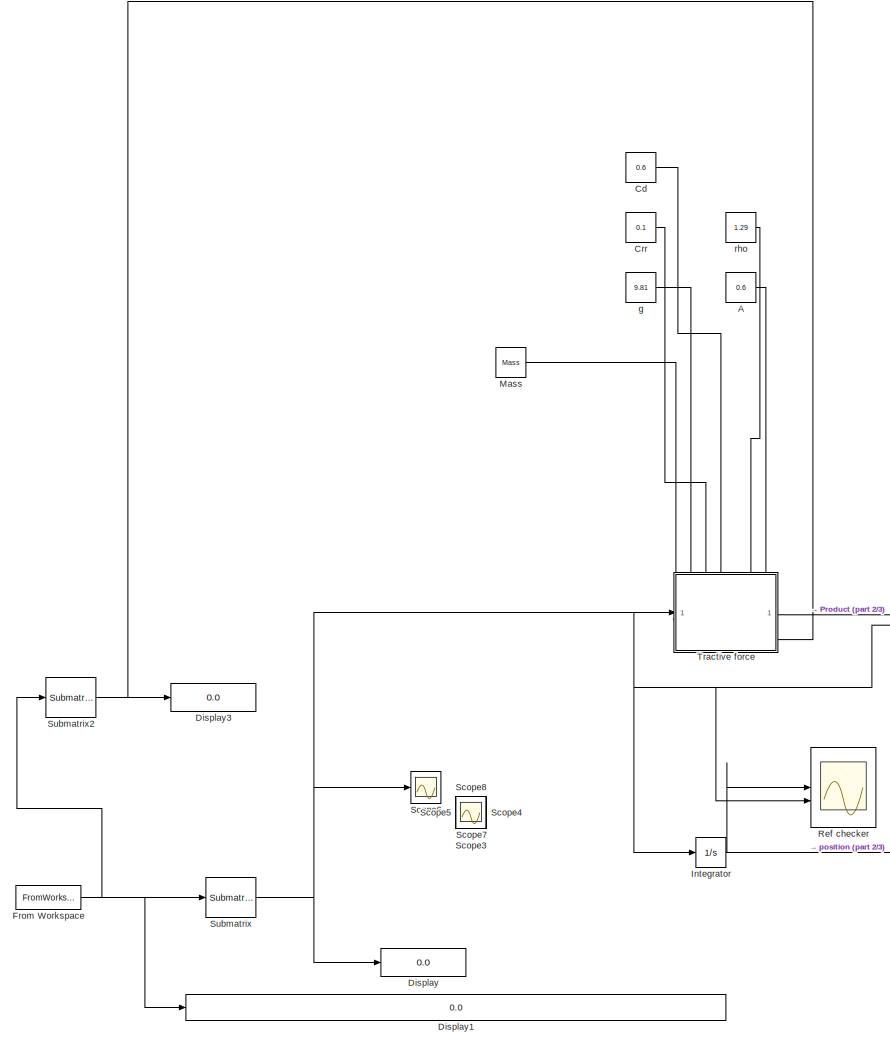
[diagram: root canvas - part 1/3, center side, full height]
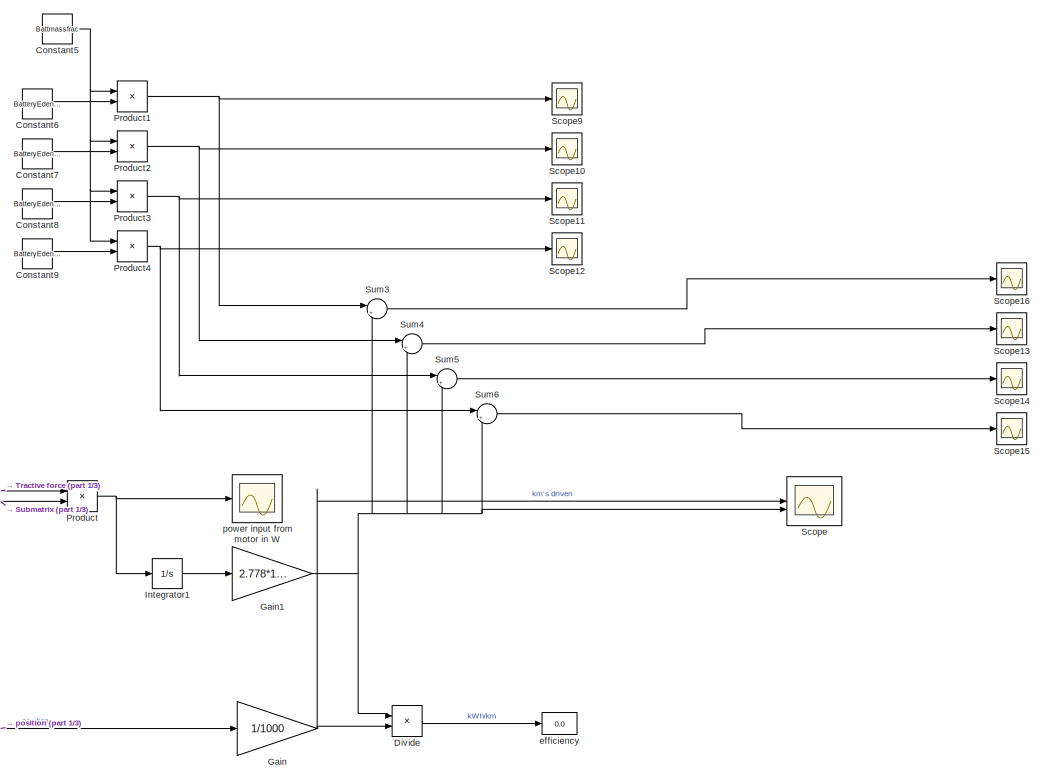
[diagram: root canvas - part 2/3, middle right region]
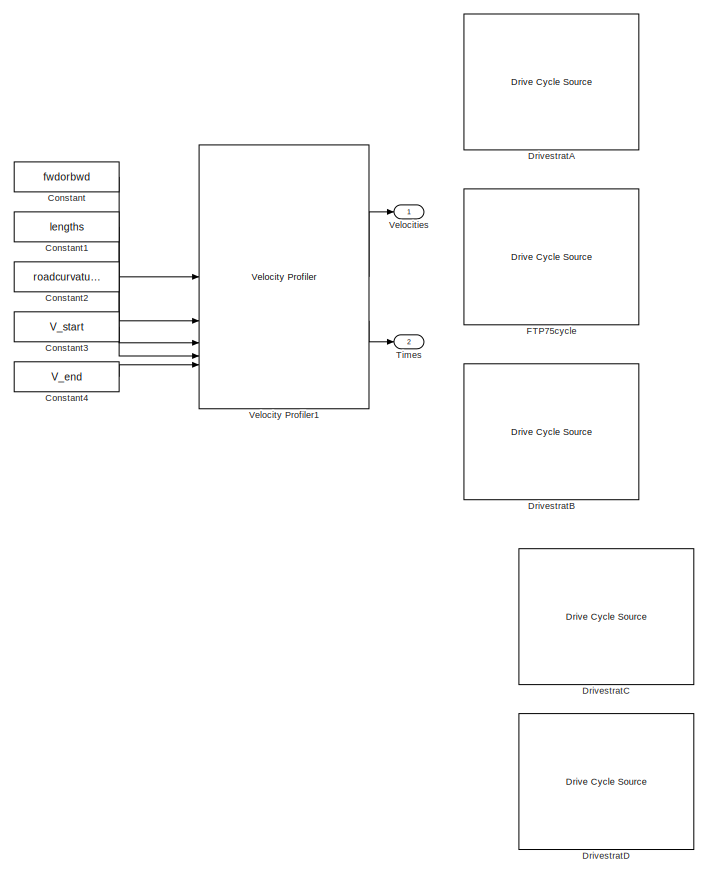
[diagram: root canvas - part 3/3, middle left region]
MODEL slx_0c96c24febb0
KIND model
CONFIG AbsTol = auto
CONFIG EnableMultiTasking = off
CONFIG FixedStep = T_step
CONFIG MaxStep = auto
CONFIG MinStep = auto
CONFIG RelTol = 1e-3
CONFIG SampleTimeConstraint = Unconstrained
CONFIG SolverName = VariableStepAuto
CONFIG StartTime = T_start
CONFIG StopTime = T_stop
BLOCK [Constant] A
  Value = 0.6
BLOCK [Constant] Cd
  Value = 0.6
BLOCK [Constant] Constant
  Commented = on
  Value = fwdorbwd
BLOCK [Constant] Constant1
  Commented = on
  Value = lengths
BLOCK [Constant] Constant2
  Commented = on
  Value = roadcurvatures
BLOCK [Constant] Constant3
  Commented = on
  Value = V_start
BLOCK [Constant] Constant4
  Commented = on
  Value = V_end
BLOCK [Constant] Constant5
  Value = Battmassfrac
BLOCK [Constant] Constant6
  Value = BatteryEdensity1
BLOCK [Constant] Constant7
  Value = BatteryEdensity2
BLOCK [Constant] Constant8
  Value = BatteryEdensity3
BLOCK [Constant] Constant9
  Value = BatteryEdensIcecube
BLOCK [Constant] Crr
  Value = 0.1
BLOCK [Display] Display
  Decimation = 1
BLOCK [Display] Display1
  Decimation = 1
BLOCK [Display] Display3
  Decimation = 1
BLOCK [Product] Divide
  Inputs = */
BLOCK [Reference] DrivestratA  REF=autolibshared/Drive Cycle Source
  AttributesFormatString = %<cycleVar> (%<tfinal>)
  Commented = on
  LibrarySourceBlock = autolibscenario/Drive Cycle Source
  SourceBlock = autolibshared/Drive Cycle Source
  SourceType = Drive Cycle Source
BLOCK [Reference] DrivestratB  REF=autolibshared/Drive Cycle Source
  AttributesFormatString = %<cycleVar> (%<tfinal>)
  Commented = on
  LibrarySourceBlock = autolibscenario/Drive Cycle Source
  SourceBlock = autolibshared/Drive Cycle Source
  SourceType = Drive Cycle Source
BLOCK [Reference] DrivestratC  REF=autolibshared/Drive Cycle Source
  AttributesFormatString = %<cycleVar> (%<tfinal>)
  Commented = on
  LibrarySourceBlock = autolibscenario/Drive Cycle Source
  SourceBlock = autolibshared/Drive Cycle Source
  SourceType = Drive Cycle Source
BLOCK [Reference] DrivestratD  REF=autolibshared/Drive Cycle Source
  AttributesFormatString = %<cycleVar> (%<tfinal>)
  Commented = on
  LibrarySourceBlock = autolibscenario/Drive Cycle Source
  SourceBlock = autolibshared/Drive Cycle Source
  SourceType = Drive Cycle Source
BLOCK [Reference] FTP75cycle  REF=autolibshared/Drive Cycle Source
  AttributesFormatString = %<cycleVar> (%<tfinal>)
  LibrarySourceBlock = autolibscenario/Drive Cycle Source
  SourceBlock = autolibshared/Drive Cycle Source
  SourceType = Drive Cycle Source
BLOCK [FromWorkspace] From Workspace
  OutDataTypeStr = double
  VariableName = Routesegment_out
BLOCK [Gain] Gain
  Gain = 1/1000
BLOCK [Gain] Gain1
  Gain = 2.778*10^-7
BLOCK [Integrator] Integrator
BLOCK [Integrator] Integrator1
BLOCK [Constant] Mass
  Value = Mass
BLOCK [Product] Product
BLOCK [Product] Product1
BLOCK [Product] Product2
BLOCK [Product] Product3
BLOCK [Product] Product4
BLOCK [Scope] Ref checker
  Floating = off
  NumInputPorts = 3
  ScopeSpecificationString = Simulink.scopes.TimeScopeBlockCfg('CurrentConfiguration', extmgr.ConfigurationSet(extmgr.Configuration('Core','General UI',true),extmgr.Configuration('Core','Source UI',true),extmgr.Configuration('Sources','WiredSimulink',true,'SampleTime','T_step'),extmgr.Configuration('Visuals','Time Domain',true,'SerializedDisplays',{struct('MinYLimReal','-0.95535','MaxYLimReal','29.36519','YLabelReal','','MinY...<+1476ch>
BLOCK [Scope] Scope
  Floating = off
  NumInputPorts = 2
  ScopeSpecificationString = Simulink.scopes.TimeScopeBlockCfg('CurrentConfiguration', extmgr.ConfigurationSet(extmgr.Configuration('Core','General UI',true),extmgr.Configuration('Core','Source UI',true),extmgr.Configuration('Sources','WiredSimulink',true,'DataLoggingVariableName','ScopeData2','SampleTime','T_step'),extmgr.Configuration('Visuals','Time Domain',true,'SerializedDisplays',{struct('MinYLimReal','-85.95648','MaxYL...<+2381ch>
BLOCK [Scope] Scope1
  Floating = off
  IOType = viewer
  NumInputPorts = 1
  ScopeSpecificationString = Simulink.scopes.TimeScopeBlockCfg('CurrentConfiguration', extmgr.ConfigurationSet(extmgr.Configuration('Core','General UI',true),extmgr.Configuration('Core','Source UI',true),extmgr.Configuration('Sources','WiredSimulink',true,'DataLoggingVariableName','ScopeData1'),extmgr.Configuration('Visuals','Time Domain',true,'SerializedDisplays',{struct('MinYLimReal','784.44315','MaxYLimReal','784.83965','Y...<+1426ch>
BLOCK [Scope] Scope10
  Floating = off
  NumInputPorts = 1
  ScopeSpecificationString = Simulink.scopes.TimeScopeBlockCfg('CurrentConfiguration', extmgr.ConfigurationSet(extmgr.Configuration('Core','General UI',true),extmgr.Configuration('Core','Source UI',true),extmgr.Configuration('Sources','WiredSimulink',true,'DataLoggingVariableName','ScopeData2'),extmgr.Configuration('Visuals','Time Domain',true),extmgr.Configuration('Tools','Plot Navigation',true),extmgr.Configuration('Tools',...<+40ch>
BLOCK [Scope] Scope11
  Floating = off
  NumInputPorts = 1
  ScopeSpecificationString = Simulink.scopes.TimeScopeBlockCfg('CurrentConfiguration', extmgr.ConfigurationSet(extmgr.Configuration('Core','General UI',true),extmgr.Configuration('Core','Source UI',true),extmgr.Configuration('Sources','WiredSimulink',true,'DataLoggingVariableName','ScopeData3'),extmgr.Configuration('Visuals','Time Domain',true),extmgr.Configuration('Tools','Plot Navigation',true),extmgr.Configuration('Tools',...<+40ch>
BLOCK [Scope] Scope12
  Floating = off
  NumInputPorts = 1
  ScopeSpecificationString = Simulink.scopes.TimeScopeBlockCfg('CurrentConfiguration', extmgr.ConfigurationSet(extmgr.Configuration('Core','General UI',true),extmgr.Configuration('Core','Source UI',true),extmgr.Configuration('Sources','WiredSimulink',true,'DataLoggingVariableName','ScopeData4'),extmgr.Configuration('Visuals','Time Domain',true),extmgr.Configuration('Tools','Plot Navigation',true),extmgr.Configuration('Tools',...<+40ch>
BLOCK [Scope] Scope13
  Floating = off
  NumInputPorts = 1
  ScopeSpecificationString = Simulink.scopes.TimeScopeBlockCfg('CurrentConfiguration', extmgr.ConfigurationSet(extmgr.Configuration('Core','General UI',true),extmgr.Configuration('Core','Source UI',true),extmgr.Configuration('Sources','WiredSimulink',true,'DataLoggingVariableName','ScopeData5'),extmgr.Configuration('Visuals','Time Domain',true),extmgr.Configuration('Tools','Plot Navigation',true),extmgr.Configuration('Tools',...<+40ch>
BLOCK [Scope] Scope14
  Floating = off
  NumInputPorts = 1
  ScopeSpecificationString = Simulink.scopes.TimeScopeBlockCfg('CurrentConfiguration', extmgr.ConfigurationSet(extmgr.Configuration('Core','General UI',true),extmgr.Configuration('Core','Source UI',true),extmgr.Configuration('Sources','WiredSimulink',true,'DataLoggingVariableName','ScopeData6'),extmgr.Configuration('Visuals','Time Domain',true),extmgr.Configuration('Tools','Plot Navigation',true),extmgr.Configuration('Tools',...<+40ch>
BLOCK [Scope] Scope15
  Floating = off
  NumInputPorts = 1
  ScopeSpecificationString = Simulink.scopes.TimeScopeBlockCfg('CurrentConfiguration', extmgr.ConfigurationSet(extmgr.Configuration('Core','General UI',true),extmgr.Configuration('Core','Source UI',true),extmgr.Configuration('Sources','WiredSimulink',true,'DataLoggingVariableName','ScopeData7'),extmgr.Configuration('Visuals','Time Domain',true,'SerializedDisplays',{struct('MinYLimReal','-187.65721','MaxYLimReal','50.71747','Y...<+1375ch>
BLOCK [Scope] Scope16
  Floating = off
  NumInputPorts = 1
  ScopeSpecificationString = Simulink.scopes.TimeScopeBlockCfg('CurrentConfiguration', extmgr.ConfigurationSet(extmgr.Configuration('Core','General UI',true),extmgr.Configuration('Core','Source UI',true),extmgr.Configuration('Sources','WiredSimulink',true,'DataLoggingVariableName','ScopeData8'),extmgr.Configuration('Visuals','Time Domain',true,'SerializedDisplays',{struct('MinYLimReal','-194.53721','MaxYLimReal','43.83747','Y...<+1410ch>
BLOCK [Scope] Scope2
  Floating = off
  IOType = viewer
  NumInputPorts = 1
  ScopeSpecificationString = Simulink.scopes.TimeScopeBlockCfg('CurrentConfiguration', extmgr.ConfigurationSet(extmgr.Configuration('Core','General UI',true),extmgr.Configuration('Core','Source UI',true),extmgr.Configuration('Sources','WiredSimulink',true,'DataLoggingVariableName','ScopeData1'),extmgr.Configuration('Visuals','Time Domain',true,'SerializedDisplays',{struct('MinYLimReal','-13.59855','MaxYLimReal','24.457','YLab...<+1390ch>
BLOCK [Scope] Scope3
  Floating = off
  IOType = viewer
  NumInputPorts = 1
  ScopeSpecificationString = Simulink.scopes.TimeScopeBlockCfg('CurrentConfiguration', extmgr.ConfigurationSet(extmgr.Configuration('Core','General UI',true),extmgr.Configuration('Core','Source UI',true),extmgr.Configuration('Sources','WiredSimulink',true,'DataLoggingVariableName','ScopeData2'),extmgr.Configuration('Visuals','Time Domain',true,'SerializedDisplays',{struct('MinYLimReal','-53.31024','MaxYLimReal','479.79222','Y...<+1402ch>
BLOCK [Scope] Scope4
  Floating = off
  IOType = viewer
  NumInputPorts = 1
  ScopeSpecificationString = Simulink.scopes.TimeScopeBlockCfg('CurrentConfiguration', extmgr.ConfigurationSet(extmgr.Configuration('Core','General UI',true),extmgr.Configuration('Core','Source UI',true),extmgr.Configuration('Sources','WiredSimulink',true,'DataLoggingVariableName','ScopeData3'),extmgr.Configuration('Visuals','Time Domain',true,'SerializedDisplays',{struct('MinYLimReal','5.48','MaxYLimReal','7.48','YLabelReal'...<+1342ch>
BLOCK [Scope] Scope5
  Floating = off
  IOType = viewer
  NumInputPorts = 1
  ScopeSpecificationString = Simulink.scopes.TimeScopeBlockCfg('CurrentConfiguration', extmgr.ConfigurationSet(extmgr.Configuration('Core','General UI',true),extmgr.Configuration('Core','Source UI',true),extmgr.Configuration('Sources','WiredSimulink',true,'DataLoggingVariableName','ScopeData4'),extmgr.Configuration('Visuals','Time Domain',true,'SerializedDisplays',{struct('MinYLimReal','711.91478','MaxYLimReal','1047.64513','...<+1419ch>
BLOCK [Scope] Scope6
  Floating = off
  NumInputPorts = 1
  ScopeSpecificationString = Simulink.scopes.TimeScopeBlockCfg('CurrentConfiguration', extmgr.ConfigurationSet(extmgr.Configuration('Core','General UI',true),extmgr.Configuration('Core','Source UI',true),extmgr.Configuration('Sources','WiredSimulink',true,'DataLoggingVariableName','ScopeData1'),extmgr.Configuration('Visuals','Time Domain',true,'SerializedDisplays',{struct('MinYLimReal','5.00000','MaxYLimReal','7.00000','YLabe...<+1366ch>
BLOCK [Scope] Scope7
  Floating = off
  IOType = viewer
  NumInputPorts = 1
  ScopeSpecificationString = Simulink.scopes.TimeScopeBlockCfg('CurrentConfiguration', extmgr.ConfigurationSet(extmgr.Configuration('Core','General UI',true),extmgr.Configuration('Core','Source UI',true),extmgr.Configuration('Sources','WiredSimulink',true,'DataLoggingVariableName','ScopeData2'),extmgr.Configuration('Visuals','Time Domain',true,'SerializedDisplays',{struct('MinYLimReal','-79.38852','MaxYLimReal','256.7083','YL...<+1404ch>
BLOCK [Scope] Scope8
  Floating = off
  IOType = viewer
  NumInputPorts = 1
  ScopeSpecificationString = Simulink.scopes.TimeScopeBlockCfg('CurrentConfiguration', extmgr.ConfigurationSet(extmgr.Configuration('Core','General UI',true),extmgr.Configuration('Core','Source UI',true),extmgr.Configuration('Sources','WiredSimulink',true,'DataLoggingVariableName','ScopeData3'),extmgr.Configuration('Visuals','Time Domain',true,'SerializedDisplays',{struct('MinYLimReal','-0.57963','MaxYLimReal','1.87441','YLab...<+1369ch>
BLOCK [Scope] Scope9
  Floating = off
  NumInputPorts = 1
  ScopeSpecificationString = Simulink.scopes.TimeScopeBlockCfg('CurrentConfiguration', extmgr.ConfigurationSet(extmgr.Configuration('Core','General UI',true),extmgr.Configuration('Core','Source UI',true),extmgr.Configuration('Sources','WiredSimulink',true,'DataLoggingVariableName','ScopeData1'),extmgr.Configuration('Visuals','Time Domain',true,'SerializedDisplays',{struct('MinYLimReal','10.00000','MaxYLimReal','30.00000','YLa...<+1408ch>
BLOCK [Reference] Submatrix  REF=matrix_library/Submatrix
  LibrarySourceBlock = simulink/Matrix\nOperations/Submatrix
  SourceBlock = matrix_library/Submatrix
  SourceType = Submatrix
BLOCK [Reference] Submatrix2  REF=matrix_library/Submatrix
  LibrarySourceBlock = simulink/Matrix\nOperations/Submatrix
  SourceBlock = matrix_library/Submatrix
  SourceType = Submatrix
BLOCK [Sum] Sum3
  Inputs = |+-
BLOCK [Sum] Sum4
  Inputs = |+-
BLOCK [Sum] Sum5
  Inputs = |+-
BLOCK [Sum] Sum6
  Inputs = |+-
BLOCK [Outport] Times
  Port = 2
  VectorParamsAs1DForOutWhenUnconnected = off
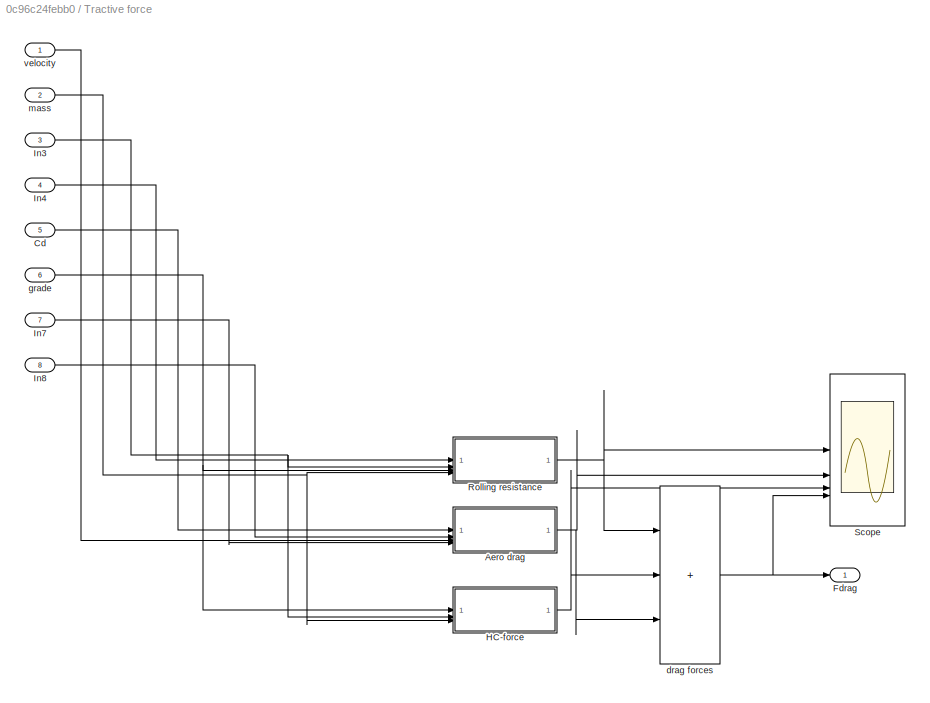
BLOCK [SubSystem] Tractive force
  PortSchema = {"entries":[{"content":{"sides":[{"content":{"connectorIds":["In1"]},"type":"ConnectorPlacement.EquallySpacedRectSide","uuid":"1dc941f5-3e74-4cbf-a52e-ea3cab36909e"},{"content":{"connectorIds":["Out1"],"side":"RIGHT"},"type":"ConnectorPlacement.EquallySpacedRectSide","uuid":"6f8e9dcb-b594-405f-a2b1-c41d344efafb"},{"content":{"connectorIds":["In2","In3","In4","In5","In6","In7","In8"],"side":"TOP"},...<+281ch>
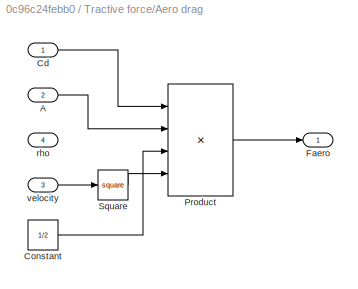
BLOCK [SubSystem] Tractive force/Aero drag
BLOCK [Inport] Tractive force/Aero drag/A
  Port = 2
BLOCK [Inport] Tractive force/Aero drag/Cd
BLOCK [Constant] Tractive force/Aero drag/Constant
  Value = 1/2
BLOCK [Outport] Tractive force/Aero drag/Faero
BLOCK [Product] Tractive force/Aero drag/Product
  Inputs = 4
BLOCK [Math] Tractive force/Aero drag/Square
  Operator = square
BLOCK [Inport] Tractive force/Aero drag/rho
  Port = 4
BLOCK [Inport] Tractive force/Aero drag/velocity
  Port = 3
BLOCK [Inport] Tractive force/Cd
  Port = 5
BLOCK [Outport] Tractive force/Fdrag
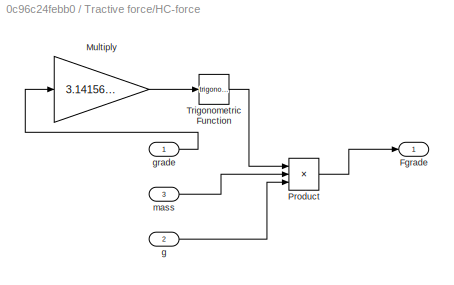
BLOCK [SubSystem] Tractive force/HC-force
BLOCK [Outport] Tractive force/HC-force/Fgrade
BLOCK [Gain] Tractive force/HC-force/Multiply
  Gain = 3.141565/180
BLOCK [Product] Tractive force/HC-force/Product
  Inputs = 3
BLOCK [Trigonometry] Tractive force/HC-force/Trigonometric Function
BLOCK [Inport] Tractive force/HC-force/g
  Port = 2
BLOCK [Inport] Tractive force/HC-force/grade
BLOCK [Inport] Tractive force/HC-force/mass
  Port = 3
BLOCK [Inport] Tractive force/In3
  Port = 3
BLOCK [Inport] Tractive force/In4
  Port = 4
BLOCK [Inport] Tractive force/In7
  Port = 7
BLOCK [Inport] Tractive force/In8
  Port = 8
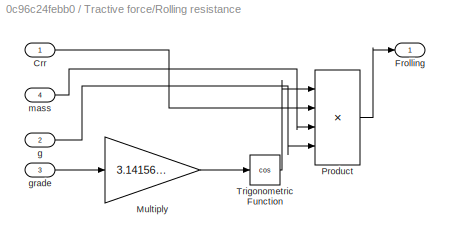
BLOCK [SubSystem] Tractive force/Rolling resistance
BLOCK [Inport] Tractive force/Rolling resistance/Crr
BLOCK [Outport] Tractive force/Rolling resistance/Frolling
BLOCK [Gain] Tractive force/Rolling resistance/Multiply
  Gain = 3.141565/180
BLOCK [Product] Tractive force/Rolling resistance/Product
  Inputs = 4
BLOCK [Trigonometry] Tractive force/Rolling resistance/Trigonometric Function
  Operator = cos
BLOCK [Inport] Tractive force/Rolling resistance/g
  Port = 2
BLOCK [Inport] Tractive force/Rolling resistance/grade
  Port = 3
BLOCK [Inport] Tractive force/Rolling resistance/mass
  Port = 4
BLOCK [Scope] Tractive force/Scope
  Floating = off
  NumInputPorts = 4
  ScopeSpecificationString = Simulink.scopes.TimeScopeBlockCfg('CurrentConfiguration', extmgr.ConfigurationSet(extmgr.Configuration('Core','General UI',true,'FigureColor',[0 0 0]),extmgr.Configuration('Core','Source UI',true),extmgr.Configuration('Sources','WiredSimulink',true,'DataLoggingVariableName','ScopeData1','SampleTime','T_step'),extmgr.Configuration('Visuals','Time Domain',true,'SerializedDisplays',{struct('MinYLimRe...<+1710ch>
BLOCK [Sum] Tractive force/drag forces
  IconShape = rectangular
  Inputs = +++
BLOCK [Inport] Tractive force/grade
  Port = 6
BLOCK [Inport] Tractive force/mass
  Port = 2
BLOCK [Inport] Tractive force/velocity
BLOCK [Outport] Velocities
  VectorParamsAs1DForOutWhenUnconnected = off
BLOCK [Reference] Velocity Profiler1  REF=drivinglib/Velocity Profiler
  Commented = on
  SourceBlock = drivinglib/Velocity Profiler
  SourceType = driving.internal.planning.VelocityProfiler
BLOCK [Display] efficiency
  Decimation = 1
  Format = bank
BLOCK [Constant] g
  Value = 9.81
BLOCK [Scope] power input from motor in W
  Floating = off
  NumInputPorts = 1
  ScopeSpecificationString = Simulink.scopes.TimeScopeBlockCfg('CurrentConfiguration', extmgr.ConfigurationSet(extmgr.Configuration('Core','General UI',true),extmgr.Configuration('Core','Source UI',true),extmgr.Configuration('Sources','WiredSimulink',true,'DataLoggingVariableName','ScopeData1','SampleTime','T_step'),extmgr.Configuration('Visuals','Time Domain',true,'SerializedDisplays',{struct('MinYLimReal','4271.49525','MaxY...<+1469ch>
BLOCK [Constant] rho
  Value = 1.29
LINE A:1 -> Tractive force:8
LINE Cd:1 -> Tractive force:5
LINE Constant1:1 -> Velocity Profiler1:2
LINE Constant2:1 -> Velocity Profiler1:3
LINE Constant3:1 -> Velocity Profiler1:4
LINE Constant4:1 -> Velocity Profiler1:5
NET Constant5:1 -> Product1:1, Product2:1, Product3:1, Product4:1
LINE Constant6:1 -> Product1:2
LINE Constant7:1 -> Product2:2
LINE Constant8:1 -> Product3:2
LINE Constant9:1 -> Product4:2
LINE Constant:1 -> Velocity Profiler1:1
LINE Crr:1 -> Tractive force:4
LINE Divide:1 -> efficiency:1
NET From Workspace:1 -> Display1:1, Submatrix2:1, Submatrix:1
NET Gain1:1 -> Divide:1, Scope:2, Sum3:2, Sum4:2, Sum5:2, Sum6:2
NET Gain:1 -> Divide:2, Scope:1
LINE Integrator1:1 -> Gain1:1
NET Integrator:1 -> Gain:1, Ref checker:1
LINE Mass:1 -> Tractive force:2
NET Product1:1 -> Scope9:1, Sum3:1
NET Product2:1 -> Scope10:1, Sum4:1
NET Product3:1 -> Scope11:1, Sum5:1
NET Product4:1 -> Scope12:1, Sum6:1
NET Product:1 -> Integrator1:1, power input from motor in W:1
NET Submatrix2:1 -> Display3:1, Tractive force:6
NET Submatrix:1 -> Display:1, Integrator:1, Product:2, Ref checker:2, Scope6:1, Tractive force:1
LINE Sum3:1 -> Scope16:1
LINE Sum4:1 -> Scope13:1
LINE Sum5:1 -> Scope14:1
LINE Sum6:1 -> Scope15:1
LINE Tractive force/Aero drag/A:1 -> Tractive force/Aero drag/Product:2
LINE Tractive force/Aero drag/Cd:1 -> Tractive force/Aero drag/Product:1
LINE Tractive force/Aero drag/Constant:1 -> Tractive force/Aero drag/Product:3
LINE Tractive force/Aero drag/Product:1 -> Tractive force/Aero drag/Faero:1
LINE Tractive force/Aero drag/Square:1 -> Tractive force/Aero drag/Product:4
LINE Tractive force/Aero drag/velocity:1 -> Tractive force/Aero drag/Square:1
NET Tractive force/Aero drag:1 -> Tractive force/Scope:2, Tractive force/drag forces:3
LINE Tractive force/Cd:1 -> Tractive force/Aero drag:1
LINE Tractive force/HC-force/Multiply:1 -> Tractive force/HC-force/Trigonometric Function:1
LINE Tractive force/HC-force/Product:1 -> Tractive force/HC-force/Fgrade:1
LINE Tractive force/HC-force/Trigonometric Function:1 -> Tractive force/HC-force/Product:1
LINE Tractive force/HC-force/g:1 -> Tractive force/HC-force/Product:3
LINE Tractive force/HC-force/grade:1 -> Tractive force/HC-force/Multiply:1
LINE Tractive force/HC-force/mass:1 -> Tractive force/HC-force/Product:2
NET Tractive force/HC-force:1 -> Tractive force/Scope:3, Tractive force/drag forces:2
NET Tractive force/In3:1 -> Tractive force/HC-force:2, Tractive force/Rolling resistance:2
LINE Tractive force/In4:1 -> Tractive force/Rolling resistance:1
LINE Tractive force/In7:1 -> Tractive force/Aero drag:4
LINE Tractive force/In8:1 -> Tractive force/Aero drag:2
LINE Tractive force/Rolling resistance/Crr:1 -> Tractive force/Rolling resistance/Product:2
LINE Tractive force/Rolling resistance/Multiply:1 -> Tractive force/Rolling resistance/Trigonometric Function:1
LINE Tractive force/Rolling resistance/Product:1 -> Tractive force/Rolling resistance/Frolling:1
LINE Tractive force/Rolling resistance/Trigonometric Function:1 -> Tractive force/Rolling resistance/Product:1
LINE Tractive force/Rolling resistance/g:1 -> Tractive force/Rolling resistance/Product:4
LINE Tractive force/Rolling resistance/grade:1 -> Tractive force/Rolling resistance/Multiply:1
LINE Tractive force/Rolling resistance/mass:1 -> Tractive force/Rolling resistance/Product:3
NET Tractive force/Rolling resistance:1 -> Tractive force/Scope:1, Tractive force/drag forces:1
NET Tractive force/drag forces:1 -> Tractive force/Fdrag:1, Tractive force/Scope:4
NET Tractive force/grade:1 -> Tractive force/HC-force:1, Tractive force/Rolling resistance:3
NET Tractive force/mass:1 -> Tractive force/HC-force:3, Tractive force/Rolling resistance:4
LINE Tractive force/velocity:1 -> Tractive force/Aero drag:3
LINE Tractive force:1 -> Product:1
LINE Velocity Profiler1:1 -> Velocities:1
LINE Velocity Profiler1:2 -> Times:1
LINE g:1 -> Tractive force:3
LINE rho:1 -> Tractive force:7
note: NET lines group one-source signal fan-out (src -> all destinations, sorted); 1:1 wires keep LINE
